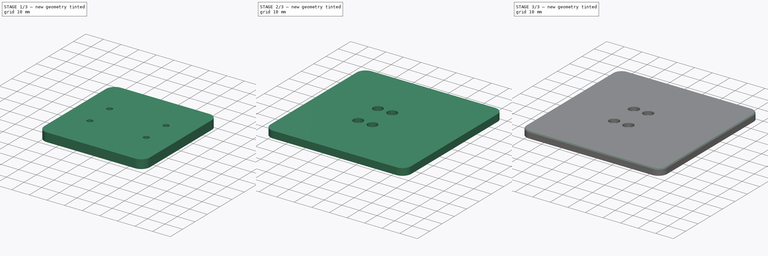
[diagram: build sequence overview — one tinted view per stage of 3, left to right]
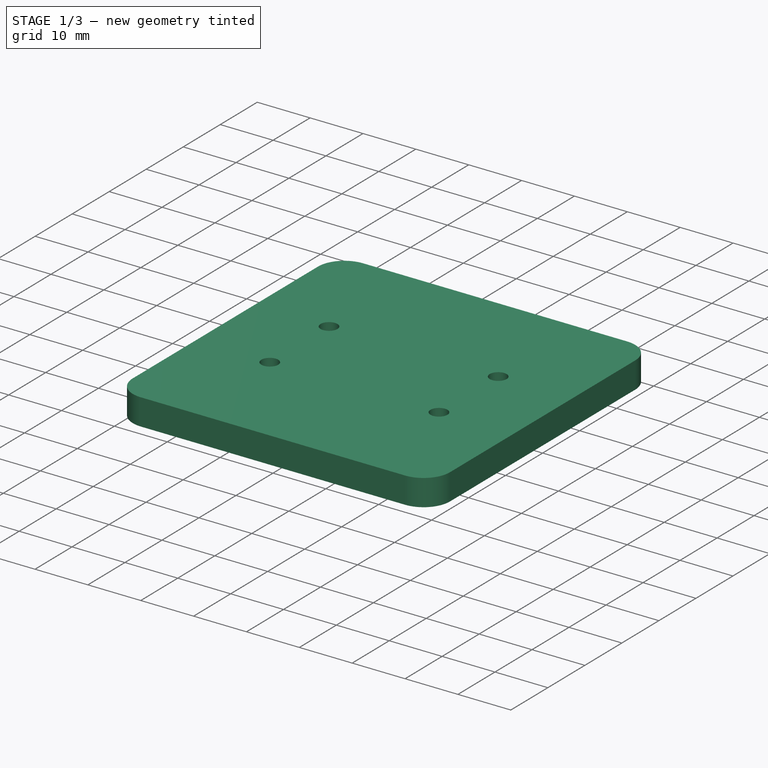
[diagram: stage 1 of 3 — iso view after this stage's code; geometry added in this stage tinted green]
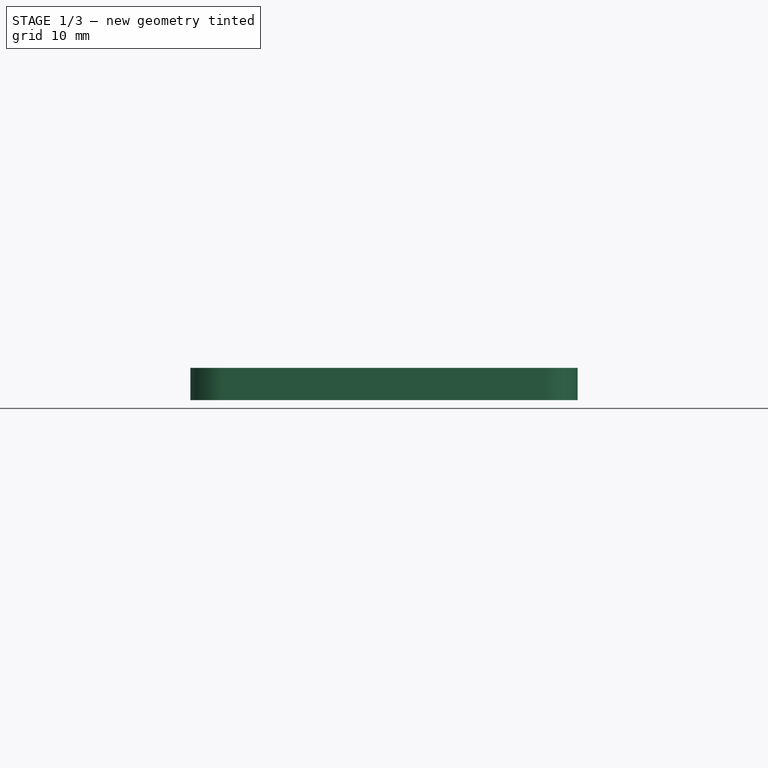
[diagram: stage 1 of 3 — front view after this stage's code; geometry added in this stage tinted green]
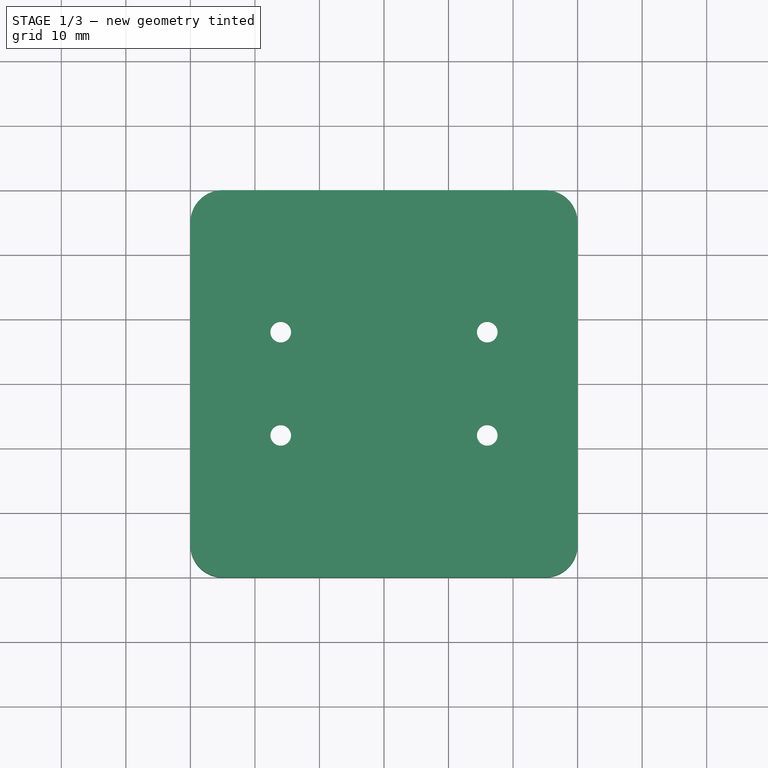
[diagram: stage 1 of 3 — top view after this stage's code; geometry added in this stage tinted green]
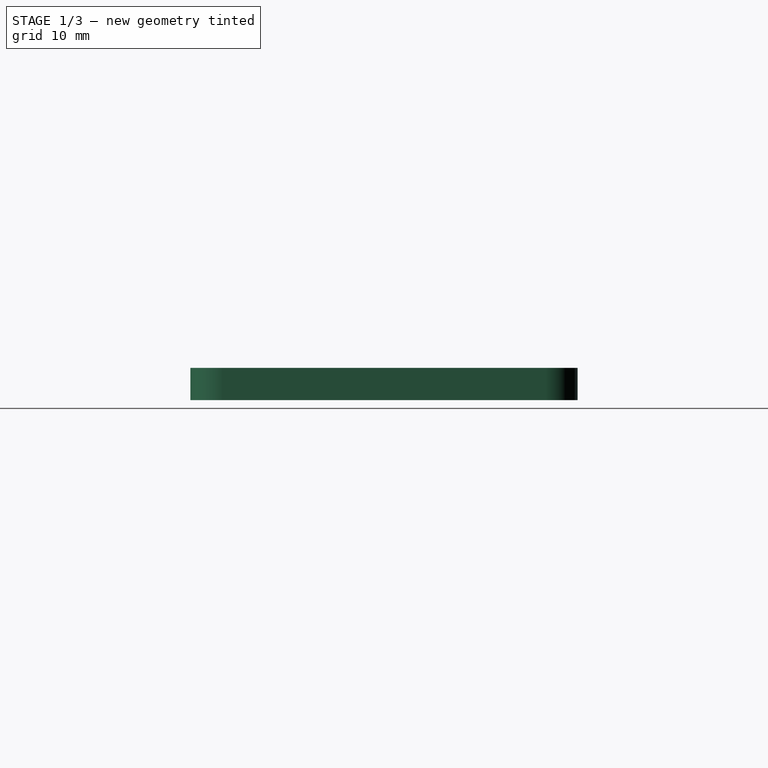
[diagram: stage 1 of 3 — right view after this stage's code; geometry added in this stage tinted green]
FCSTD DOCUMENT  (FreeCAD 1.0RUnknown)
Label: Scales
License: All rights reserved
LicenseURL: https://en.wikipedia.org/wiki/All_rights_reserved
objects: Sketcher::SketchObject×5, PartDesign::Pad×2, PartDesign::Pocket×2, PartDesign::Fillet×2, PartDesign::Body×2
note: 30 computed .brp shape members not serialized (recipe doc carries the construction recipe); baked Part::Feature solids carry a one-line shape summary decoded from their .brp

FEATURE [PartDesign::Body] Body  label="Plate"
  AllowCompound = false
  Group = -> [Sketch002,Pad001,Sketch003,Pocket,Fillet,Fillet001]
  Origin = -> Origin
  Tip = -> Fillet001
FEATURE [Sketcher::SketchObject] Sketch004
  ArcFitTolerance = 1e-06
  AttachmentOffset = pos=(0,0,-10) rot=(1,0,0;3.14159rad)
  AttachmentSupport = -> [XY_Plane001]
  FullyConstrained = true
  MakeInternals = false
  MapMode = 5
  Placement = pos=(0,0,-10) rot=(1,0,0;3.14159rad)
  sketch-geometry (30):
    g0: LineSegment StartX=-20 StartY=8 StartZ=0 EndX=-20 EndY=-8 EndZ=0
    g1: LineSegment StartX=-16 StartY=-12 StartZ=0 EndX=16 EndY=-12 EndZ=0
    g2: LineSegment StartX=20 StartY=-8 StartZ=0 EndX=20 EndY=8 EndZ=0
    g3: LineSegment StartX=16 StartY=12 StartZ=0 EndX=-16 EndY=12 EndZ=0
    g4: LineSegment [constr] StartX=-20 StartY=0 StartZ=0 EndX=0 EndY=0 EndZ=0
    g5: LineSegment [constr] StartX=0 StartY=0 StartZ=0 EndX=20 EndY=0 EndZ=0
    g6: LineSegment [constr] StartX=-8e-16 StartY=12 StartZ=0 EndX=0 EndY=0 EndZ=0
    g7: LineSegment [constr] StartX=0 StartY=0 StartZ=0 EndX=1.1e-15 EndY=-12 EndZ=0
    g8: Circle CenterX=-16 CenterY=8 CenterZ=0 NormalX=0 NormalY=0 NormalZ=1 AngleXU=0 Radius=2.3
    g9: Circle CenterX=16 CenterY=8 CenterZ=0 NormalX=0 NormalY=0 NormalZ=1 AngleXU=0 Radius=2.3
    g10: Circle CenterX=-16 CenterY=-8 CenterZ=0 NormalX=0 NormalY=0 NormalZ=1 AngleXU=0 Radius=2.3
    g11: Circle CenterX=16 CenterY=-8 CenterZ=0 NormalX=0 NormalY=0 NormalZ=1 AngleXU=0 Radius=2.3
    g12: LineSegment [constr] StartX=-16 StartY=8 StartZ=0 EndX=-16 EndY=-8 EndZ=0
    g13: LineSegment [constr] StartX=16 StartY=-8 StartZ=0 EndX=16 EndY=8 EndZ=0
    g14: LineSegment [constr] StartX=-16 StartY=8 StartZ=0 EndX=0 EndY=8 EndZ=0
    g15: LineSegment [constr] StartX=0 StartY=8 StartZ=0 EndX=16 EndY=8 EndZ=0
    g16: LineSegment [constr] StartX=-16 StartY=-8 StartZ=0 EndX=0 EndY=-8 EndZ=0
    g17: LineSegment [constr] StartX=0 StartY=-8 StartZ=0 EndX=16 EndY=-8 EndZ=0
    g18: ArcOfCircle CenterX=-16 CenterY=8 CenterZ=0 NormalX=0 NormalY=0 NormalZ=1 AngleXU=0 Radius=4 StartAngle=1.5708 EndAngle=3.14159
    g19: GeomPoint [constr] X=-20 Y=12 Z=0
    g20: LineSegment [constr] StartX=-20 StartY=8 StartZ=0 EndX=-16 EndY=8 EndZ=0
    g21: ArcOfCircle CenterX=-16 CenterY=-8 CenterZ=0 NormalX=0 NormalY=0 NormalZ=1 AngleXU=0 Radius=4 StartAngle=3.14159 EndAngle=4.71239
    g22: GeomPoint [constr] X=-20 Y=-12 Z=0
    g23: ArcOfCircle CenterX=16 CenterY=-8 CenterZ=0 NormalX=0 NormalY=0 NormalZ=1 AngleXU=0 Radius=4 StartAngle=4.71239 EndAngle=6.28319
    g24: GeomPoint [constr] X=20 Y=-12 Z=0
    g25: ArcOfCircle CenterX=16 CenterY=8 CenterZ=0 NormalX=0 NormalY=0 NormalZ=1 AngleXU=0 Radius=4 StartAngle=2e-16 EndAngle=1.5708
    g26: GeomPoint [constr] X=20 Y=12 Z=0
    g27: LineSegment [constr] StartX=16 StartY=8 StartZ=0 EndX=20 EndY=8 EndZ=0
    g28: LineSegment [constr] StartX=16 StartY=-8 StartZ=0 EndX=20 EndY=-8 EndZ=0
    g29: LineSegment [constr] StartX=-16 StartY=-8 StartZ=0 EndX=-20 EndY=-8 EndZ=0
  constraints (72):
    c: Vertical(g0)
    c: Vertical(g2)
    c: Horizontal(g1)
    c: Horizontal(g3)
    c: DistanceX(g19,g26) = 40
    c: DistanceY(g22,g19) = 24
    c: PointOnObject(g4,g0)
    c: Horizontal(g4)
    c: PointOnObject(g5,g2)
    c: Horizontal(g5)
    c: Equal(g4,g5)
    c: Symmetric(g26,g19,g6)
    c: Symmetric(g22,g24,g7)
    c: Equal(g7,g6)
    c: Vertical(g12)
    c: Vertical(g13)
    c: Coincident(g12,g8)
    c: Coincident(g9,g13)
    c: Coincident(g10,g12)
    c: Diameter(g8) = 4.6
    c: Equal(g8,g9)
    c: Equal(g8,g10)
    c: Equal(g8,g11)
    c: Distance(g8,g0) = 1.7
    c: Distance(g8,g3) = 1.7
    c: Distance(g10,g1) = 1.7
    c: Distance(g9,g2) = 1.7
    c: Coincident(g14,g8)
    c: Horizontal(g14)
    c: Coincident(g15,g9)
    c: Horizontal(g15)
    c: Coincident(g16,g10)
    c: Horizontal(g16)
    c: Coincident(g17,g11)
    c: Horizontal(g17)
    c: Coincident(g11,g13)
    c: PointOnObject(g19,g0)
    c: PointOnObject(g19,g3)
    c: Tangent(g0,g18) = -1.5708
    c: Tangent(g3,g18) = -1.5708
    c: Coincident(g20,g0)
    c: Coincident(g20,g8)
    c: Horizontal(g20)
    c: PointOnObject(g22,g0)
    c: PointOnObject(g22,g1)
    c: Tangent(g0,g21) = -1.5708
    c: Tangent(g1,g21) = -1.5708
    c: PointOnObject(g24,g1)
    c: PointOnObject(g24,g2)
    c: Tangent(g1,g23) = -1.5708
    c: Tangent(g2,g23) = -1.5708
    c: PointOnObject(g26,g2)
    c: PointOnObject(g26,g3)
    c: Tangent(g2,g25) = -1.5708
    c: Tangent(g3,g25) = -1.5708
    c: Coincident(g27,g9)
    c: Coincident(g27,g2)
    c: Coincident(g28,g11)
    c: Coincident(g28,g2)
    c: Coincident(g29,g10)
    c: Coincident(g29,g0)
    c: Horizontal(g29)
    c: Horizontal(g28)
    c: Horizontal(g27)
    c: PointOnObject(g14,g6)
    c: Coincident(g15,g14)
    c: PointOnObject(g16,g7)
    c: Coincident(g17,g16)
    c: Coincident(g4,g5)
    c: Coincident(g7,g-1)
    c: Coincident(g4,g7)
    c: Coincident(g6,g4)
FEATURE [Sketcher::SketchObject] Sketch005
  ArcFitTolerance = 1e-06
  AttachmentOffset = pos=(0,0,0) rot=(1,0,0;3.14159rad)
  AttachmentSupport = -> [XY_Plane001]
  ExternalGeometry = -> [Sketch004]
  FullyConstrained = true
  MakeInternals = false
  MapMode = 5
  Placement = pos=(0,0,0) rot=(1,0,0;3.14159rad)
  sketch-geometry (15):
    g0: LineSegment StartX=-25 StartY=-30 StartZ=0 EndX=25 EndY=-30 EndZ=0
    g1: LineSegment StartX=30 StartY=-25 StartZ=0 EndX=30 EndY=25 EndZ=0
    g2: LineSegment StartX=25 StartY=30 StartZ=0 EndX=-25 EndY=30 EndZ=0
    g3: LineSegment StartX=-30 StartY=25 StartZ=0 EndX=-30 EndY=-25 EndZ=0
    g4: ArcOfCircle CenterX=-25 CenterY=25 CenterZ=0 NormalX=0 NormalY=0 NormalZ=1 AngleXU=0 Radius=5 StartAngle=1.5708 EndAngle=3.14159
    g5: ArcOfCircle CenterX=25 CenterY=25 CenterZ=0 NormalX=0 NormalY=0 NormalZ=1 AngleXU=0 Radius=5 StartAngle=0 EndAngle=1.5708
    g6: GeomPoint [constr] X=30 Y=30 Z=0
    g7: ArcOfCircle CenterX=25 CenterY=-25 CenterZ=0 NormalX=0 NormalY=0 NormalZ=1 AngleXU=0 Radius=5 StartAngle=4.71239 EndAngle=6.28319
    g8: GeomPoint [constr] X=30 Y=-30 Z=0
    g9: ArcOfCircle CenterX=-25 CenterY=-25 CenterZ=0 NormalX=0 NormalY=0 NormalZ=1 AngleXU=0 Radius=5 StartAngle=3.14159 EndAngle=4.71239
    g10: GeomPoint [constr] X=-30 Y=-30 Z=0
    g11: Circle CenterX=-16 CenterY=8 CenterZ=0 NormalX=0 NormalY=0 NormalZ=1 AngleXU=0 Radius=1.6
    g12: Circle CenterX=16 CenterY=8 CenterZ=0 NormalX=0 NormalY=0 NormalZ=1 AngleXU=0 Radius=1.6
    g13: Circle CenterX=16 CenterY=-8 CenterZ=0 NormalX=0 NormalY=0 NormalZ=1 AngleXU=0 Radius=1.6
    g14: Circle CenterX=-16 CenterY=-8 CenterZ=0 NormalX=0 NormalY=0 NormalZ=1 AngleXU=0 Radius=1.6
  constraints (32):
    c: Horizontal(g0)
    c: Vertical(g1)
    c: Tangent(g2,g4) = -1.5708
    c: Tangent(g3,g4) = -1.5708
    c: PointOnObject(g6,g1)
    c: PointOnObject(g6,g2)
    c: Tangent(g1,g5) = -1.5708
    c: Tangent(g2,g5) = -1.5708
    c: PointOnObject(g8,g0)
    c: PointOnObject(g8,g1)
    c: Tangent(g0,g7) = -1.5708
    c: Tangent(g1,g7) = -1.5708
    c: PointOnObject(g10,g0)
    c: PointOnObject(g10,g3)
    c: Tangent(g0,g9) = -1.5708
    c: Tangent(g3,g9) = -1.5708
    c: Radius(g4) = 5
    c: Equal(g4,g5)
    c: Equal(g4,g9)
    c: Equal(g4,g7)
    c: Coincident(g12,g-4)
    c: Coincident(g13,g-5)
    c: Coincident(g14,g-6)
    c: Equal(g11,g12)
    c: Equal(g11,g14)
    c: Equal(g11,g13)
    c: Diameter(g11) = 3.2
    c: Symmetric(g2,g2,g-2)
    c: Symmetric(g3,g3,g-1)
    c: Coincident(g11,g-3)
    c: DistanceX(g3,g1) = 60
    c: DistanceY(g0,g2) = 60
FEATURE [PartDesign::Pad] Pad002
  Direction = (0,-1e-16,-1)
  Length = 5
  Length2 = 10
  Profile = -> Sketch005
  ReferenceAxis = -> Sketch005 [N_Axis]
  Refine = true
  Suppressed = false
  Type = 0
FEATURE [Sketcher::SketchObject] Sketch006
  ArcFitTolerance = 1e-06
  AttachmentSupport = -> [Pad002]
  ExternalGeometry = -> [Sketch004]
  FullyConstrained = true
  MakeInternals = false
  MapMode = 5
  Placement = pos=(0,-6e-16,-5) rot=(1,0,0;3.14159rad)
  sketch-geometry (4):
    g0: Circle CenterX=-16 CenterY=8 CenterZ=0 NormalX=0 NormalY=0 NormalZ=1 AngleXU=0 Radius=3.25
    g1: Circle CenterX=-16 CenterY=-8 CenterZ=0 NormalX=0 NormalY=0 NormalZ=1 AngleXU=0 Radius=3.25
    g2: Circle CenterX=16 CenterY=-8 CenterZ=0 NormalX=0 NormalY=0 NormalZ=1 AngleXU=0 Radius=3.25
    g3: Circle CenterX=16 CenterY=8 CenterZ=0 NormalX=0 NormalY=0 NormalZ=1 AngleXU=0 Radius=3.25
  constraints (8):
    c: Coincident(g0,g-3)
    c: Coincident(g1,g-4)
    c: Coincident(g2,g-5)
    c: Coincident(g3,g-6)
    c: Diameter(g0) = 6.5
    c: Equal(g0,g3)
    c: Equal(g0,g1)
    c: Equal(g0,g2)
FEATURE [PartDesign::Pocket] Pocket001
  BaseFeature = -> Pad002
  Direction = (0,0,1)
  Length = 3.5
  Length2 = 5
  Profile = -> Sketch006
  ReferenceAxis = -> Sketch006 [N_Axis]
  Refine = true
  Suppressed = false
  Type = 0
FEATURE [PartDesign::Body] Body001  label="Base"
  AllowCompound = false
  Group = -> [Sketch005,Sketch004,Pad002,Sketch006,Pocket001]
  Origin = -> Origin001
  Placement = pos=(0,0,-10) rot=(0,0,1;3.14159rad)
  Tip = -> Pocket001
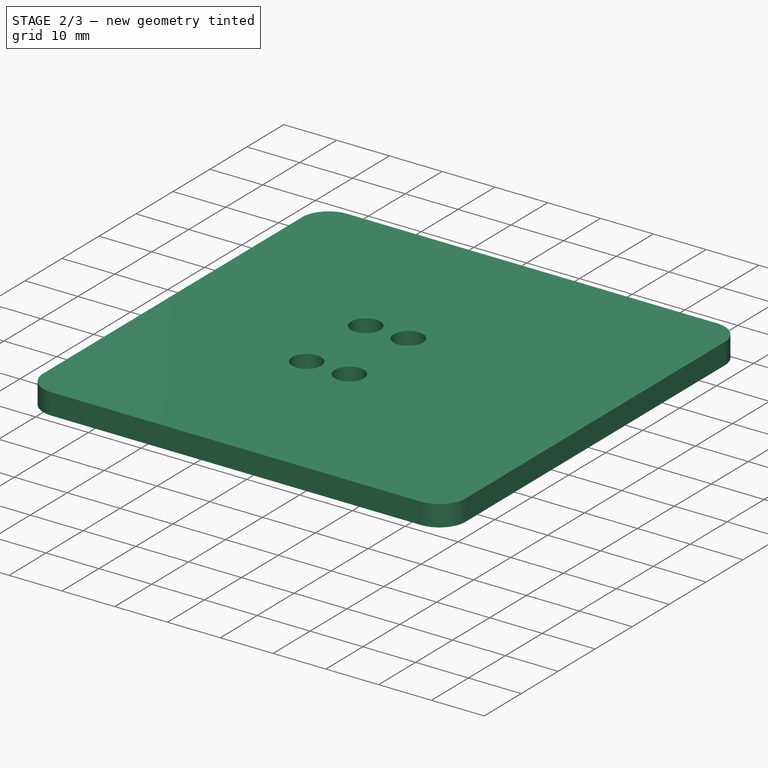
[diagram: stage 2 of 3 — iso view after this stage's code; geometry added in this stage tinted green]
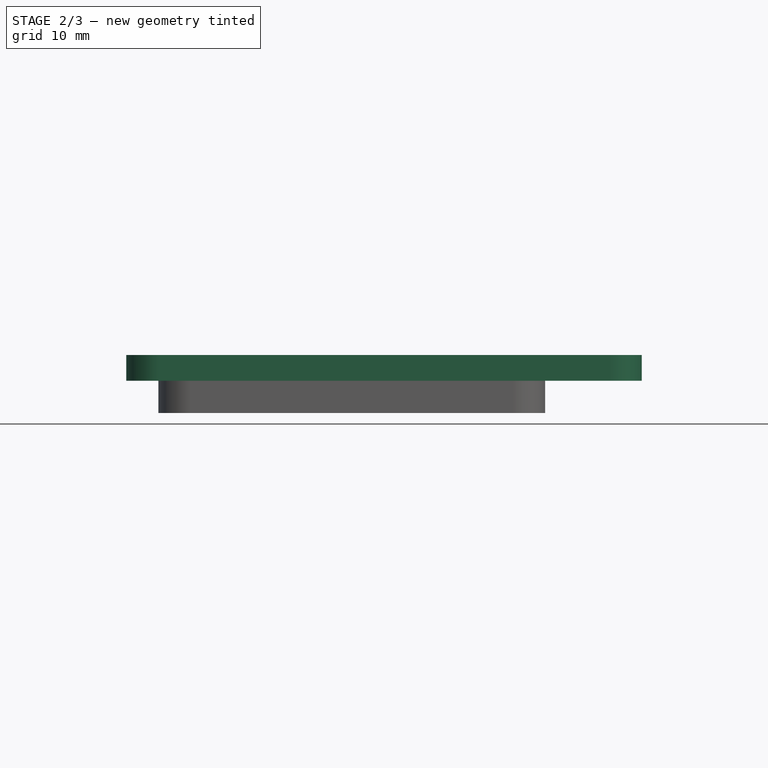
[diagram: stage 2 of 3 — front view after this stage's code; geometry added in this stage tinted green]
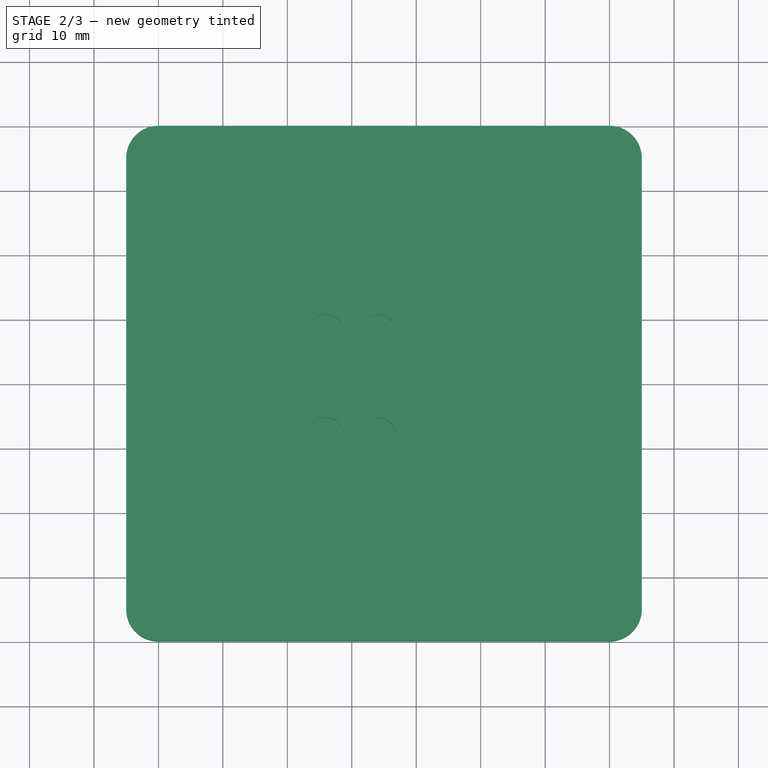
[diagram: stage 2 of 3 — top view after this stage's code; geometry added in this stage tinted green]
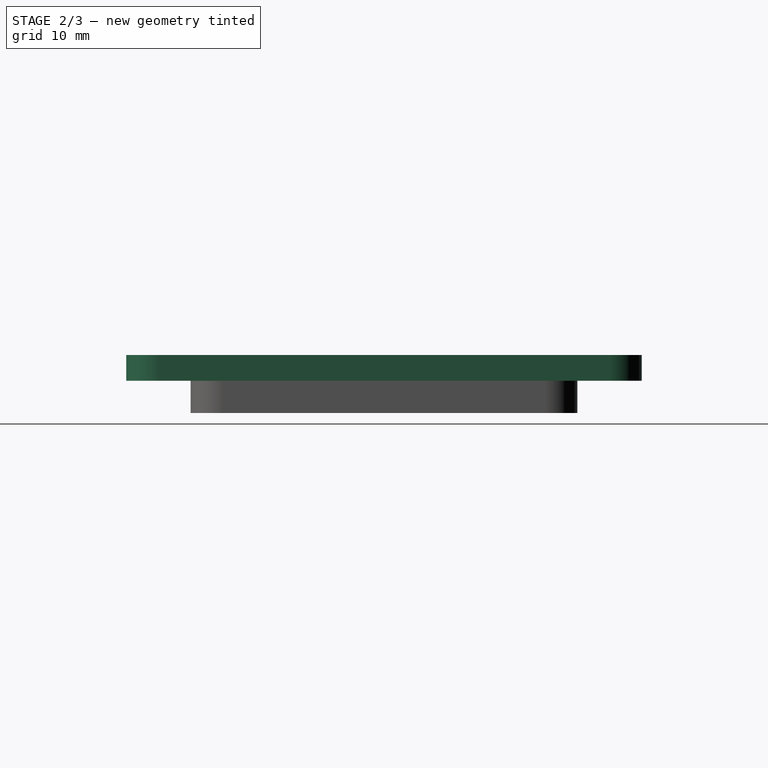
[diagram: stage 2 of 3 — right view after this stage's code; geometry added in this stage tinted green]
FEATURE [Sketcher::SketchObject] Sketch002
  ArcFitTolerance = 1e-06
  AttachmentSupport = -> [XY_Plane]
  FullyConstrained = true
  MakeInternals = false
  MapMode = 5
  sketch-geometry (12):
    g0: LineSegment StartX=-30 StartY=-40 StartZ=0 EndX=40 EndY=-40 EndZ=0
    g1: LineSegment StartX=45 StartY=-35 StartZ=0 EndX=45 EndY=35 EndZ=0
    g2: LineSegment StartX=40 StartY=40 StartZ=0 EndX=-30 EndY=40 EndZ=0
    g3: LineSegment StartX=-35 StartY=35 StartZ=0 EndX=-35 EndY=-35 EndZ=0
    g4: ArcOfCircle CenterX=-30 CenterY=35 CenterZ=0 NormalX=0 NormalY=0 NormalZ=1 AngleXU=0 Radius=5 StartAngle=1.5708 EndAngle=3.14159
    g5: GeomPoint [constr] X=-35 Y=40 Z=0
    g6: ArcOfCircle CenterX=40 CenterY=35 CenterZ=0 NormalX=0 NormalY=0 NormalZ=1 AngleXU=0 Radius=5 StartAngle=2e-16 EndAngle=1.5708
    g7: GeomPoint [constr] X=45 Y=40 Z=0
    g8: ArcOfCircle CenterX=40 CenterY=-35 CenterZ=0 NormalX=0 NormalY=0 NormalZ=1 AngleXU=0 Radius=5 StartAngle=4.71239 EndAngle=6.28319
    g9: GeomPoint [constr] X=45 Y=-40 Z=0
    g10: ArcOfCircle CenterX=-30 CenterY=-35 CenterZ=0 NormalX=0 NormalY=0 NormalZ=1 AngleXU=0 Radius=5 StartAngle=3.14159 EndAngle=4.71239
    g11: GeomPoint [constr] X=-35 Y=-40 Z=0
  constraints (27):
    c: Horizontal(g0)
    c: Vertical(g1)
    c: DistanceX(g5,g7) = 80
    c: DistanceY(g11,g5) = 80
    c: PointOnObject(g5,g2)
    c: PointOnObject(g5,g3)
    c: Tangent(g2,g4) = -1.5708
    c: Tangent(g3,g4) = -1.5708
    c: PointOnObject(g7,g1)
    c: PointOnObject(g7,g2)
    c: Tangent(g1,g6) = -1.5708
    c: Tangent(g2,g6) = -1.5708
    c: PointOnObject(g9,g0)
    c: PointOnObject(g9,g1)
    c: Tangent(g0,g8) = -1.5708
    c: Tangent(g1,g8) = -1.5708
    c: PointOnObject(g11,g0)
    c: PointOnObject(g11,g3)
    c: Tangent(g0,g10) = -1.5708
    c: Tangent(g3,g10) = -1.5708
    c: Radius(g4) = 5
    c: Radius(g6) = 5
    c: Radius(g8) = 5
    c: Radius(g10) = 5
    c: Symmetric(g3,g3,g-1)
    c: Distance(g-2,g1) = 45
    c: Horizontal(g2)
FEATURE [PartDesign::Pad] Pad001
  Direction = (0,0,1)
  Length = 4
  Length2 = 10
  Profile = -> Sketch002
  ReferenceAxis = -> Sketch002 [N_Axis]
  Refine = true
  Suppressed = false
  Type = 0
FEATURE [Sketcher::SketchObject] Sketch003
  ArcFitTolerance = 1e-06
  AttachmentSupport = -> [Pad001]
  FullyConstrained = true
  MakeInternals = false
  MapMode = 5
  Placement = pos=(0,0,4) rot=(0,0,1;0rad)
  sketch-geometry (8):
    g0: Circle CenterX=-4.05 CenterY=8 CenterZ=0 NormalX=0 NormalY=0 NormalZ=1 AngleXU=0 Radius=2.75
    g1: Circle CenterX=4.05 CenterY=8 CenterZ=0 NormalX=0 NormalY=0 NormalZ=1 AngleXU=0 Radius=2.75
    g2: Circle CenterX=-4.05 CenterY=-8 CenterZ=0 NormalX=0 NormalY=0 NormalZ=1 AngleXU=0 Radius=2.75
    g3: Circle CenterX=4.05 CenterY=-8 CenterZ=0 NormalX=0 NormalY=0 NormalZ=1 AngleXU=0 Radius=2.75
    g4: LineSegment [constr] StartX=-4.05 StartY=8 StartZ=0 EndX=-4.05 EndY=-8 EndZ=0
    g5: LineSegment [constr] StartX=-4.05 StartY=-8 StartZ=0 EndX=4.05 EndY=-8 EndZ=0
    g6: LineSegment [constr] StartX=4.05 StartY=-8 StartZ=0 EndX=4.05 EndY=8 EndZ=0
    g7: LineSegment [constr] StartX=4.05 StartY=8 StartZ=0 EndX=-4.05 EndY=8 EndZ=0
  constraints (19):
    c: Equal(g0,g1)
    c: Equal(g0,g2)
    c: Equal(g0,g3)
    c: Diameter(g0) = 5.5
    c: DistanceX(g0,g1) = 8.1
    c: DistanceY(g2,g0) = 16
    c: Coincident(g4,g0)
    c: Coincident(g4,g2)
    c: Vertical(g4)
    c: Coincident(g5,g2)
    c: Coincident(g5,g3)
    c: Horizontal(g5)
    c: Coincident(g6,g3)
    c: Coincident(g6,g1)
    c: Coincident(g7,g1)
    c: Coincident(g7,g0)
    c: Equal(g4,g6)
    c: Equal(g7,g5)
    c: Symmetric(g0,g1,g-2)
FEATURE [PartDesign::Pocket] Pocket
  BaseFeature = -> Pad001
  Direction = (0,0,-1)
  Length = 2.5
  Length2 = 5
  Profile = -> Sketch003
  ReferenceAxis = -> Sketch003 [N_Axis]
  Refine = true
  Suppressed = false
  Type = 0
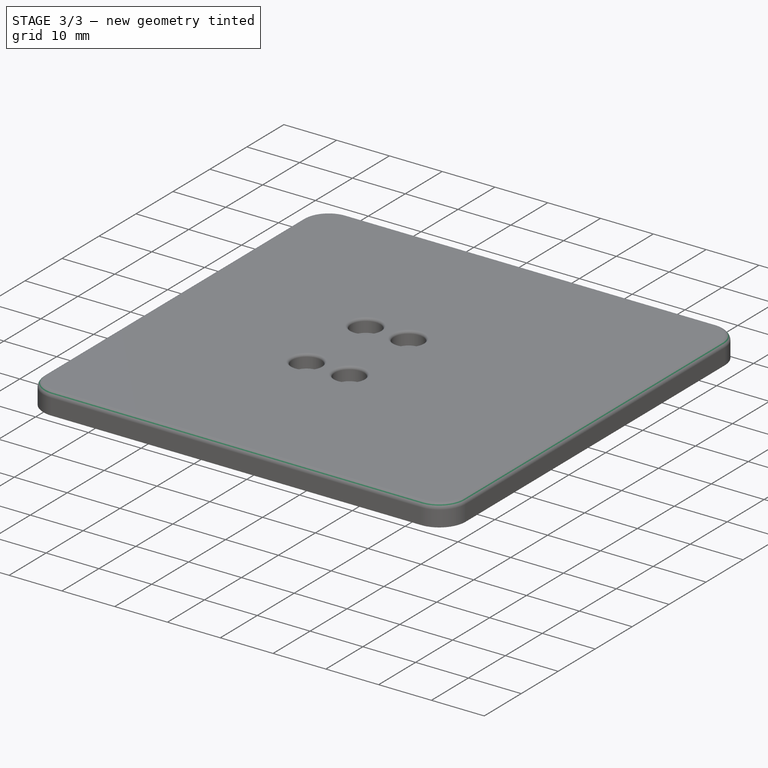
[diagram: stage 3 of 3 — iso view after this stage's code; geometry added in this stage tinted green]
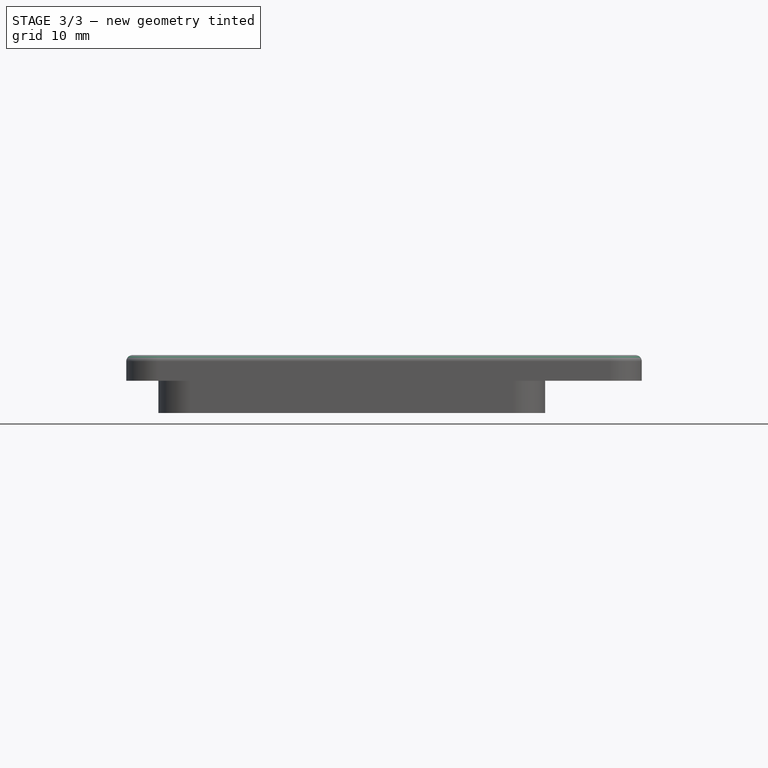
[diagram: stage 3 of 3 — front view after this stage's code; geometry added in this stage tinted green]
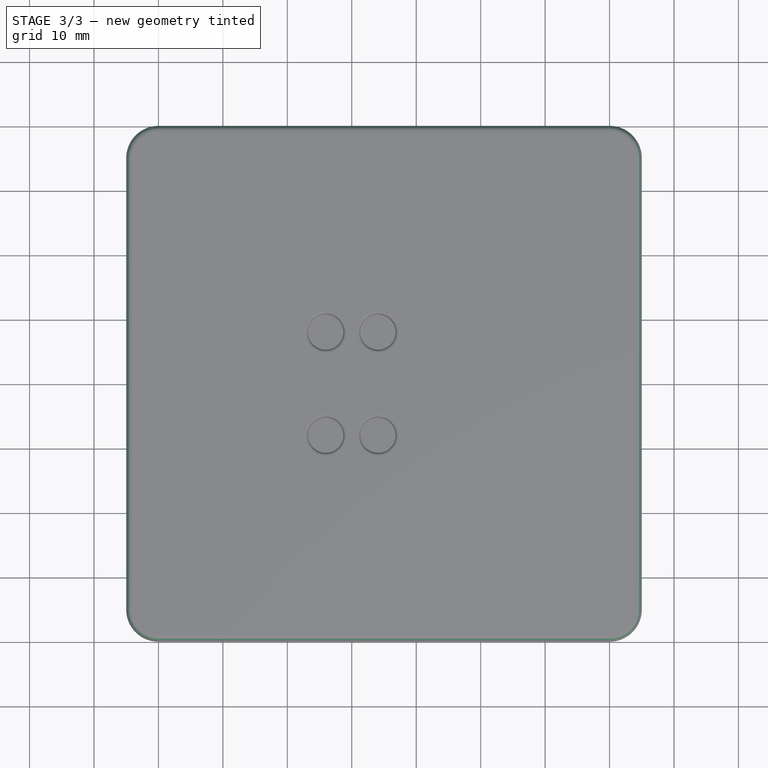
[diagram: stage 3 of 3 — top view after this stage's code; geometry added in this stage tinted green]
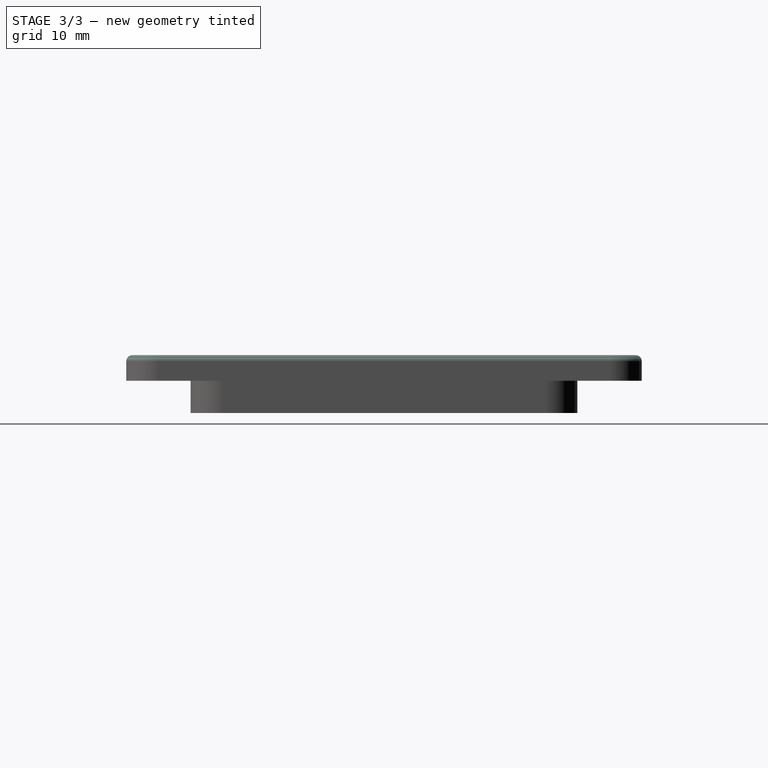
[diagram: stage 3 of 3 — right view after this stage's code; geometry added in this stage tinted green]
FEATURE [PartDesign::Fillet] Fillet
  Base = -> Pocket [Edge17,Edge19,Edge20,Edge18,Edge16,Edge7,Edge4,Edge10]
  BaseFeature = -> Pocket
  Radius = 1
  Refine = true
  SupportTransform = false
  Suppressed = false
  UseAllEdges = false
FEATURE [PartDesign::Fillet] Fillet001
  Base = -> Fillet [Edge29,Edge31,Edge32,Edge30]
  BaseFeature = -> Fillet
  Radius = 0.5
  Refine = true
  SupportTransform = false
  Suppressed = false
  UseAllEdges = false
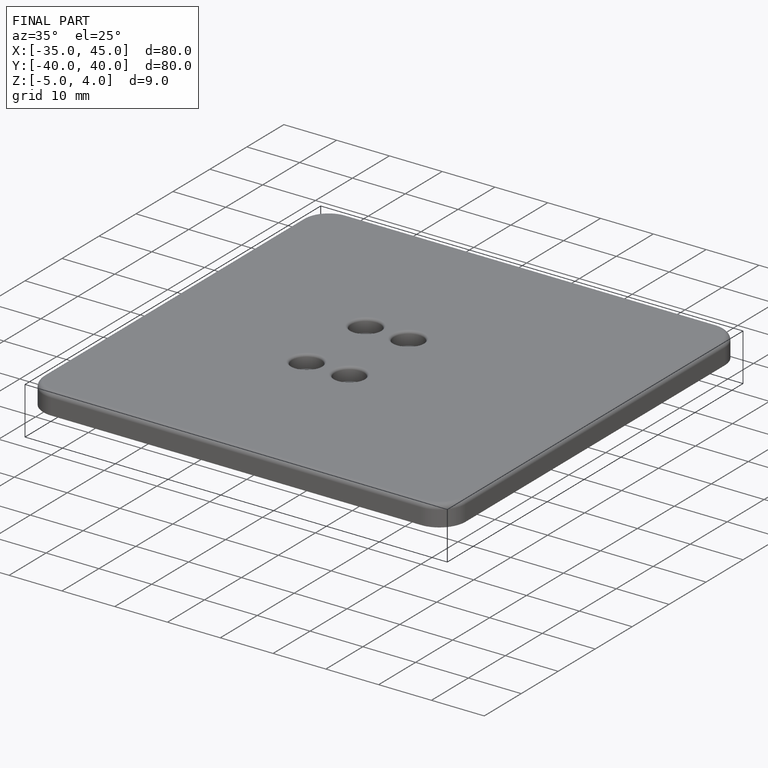
[diagram: finished part — iso view with bounding-box wireframe]
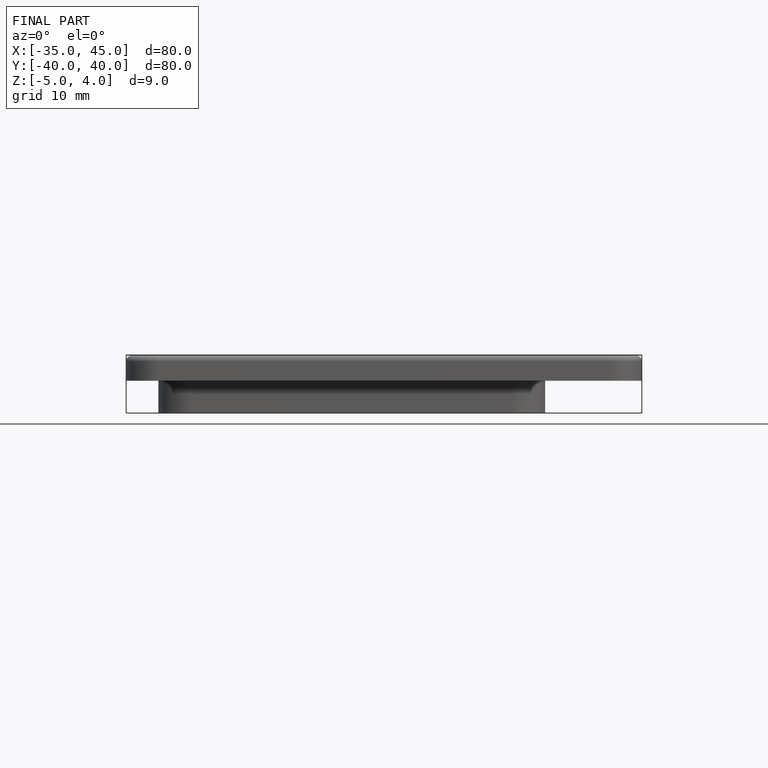
[diagram: finished part — front view with bounding-box wireframe]
